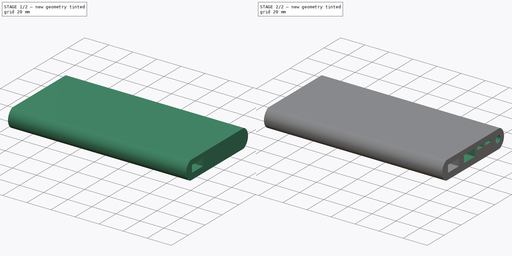
[diagram: build sequence overview — one tinted view per stage of 2, left to right]
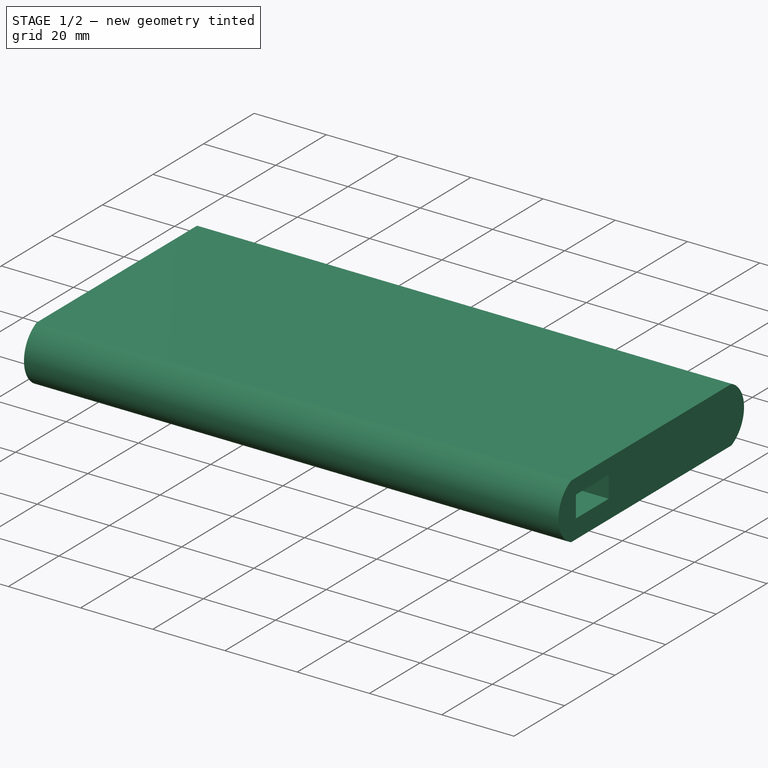
[diagram: stage 1 of 2 — iso view after this stage's code; geometry added in this stage tinted green]
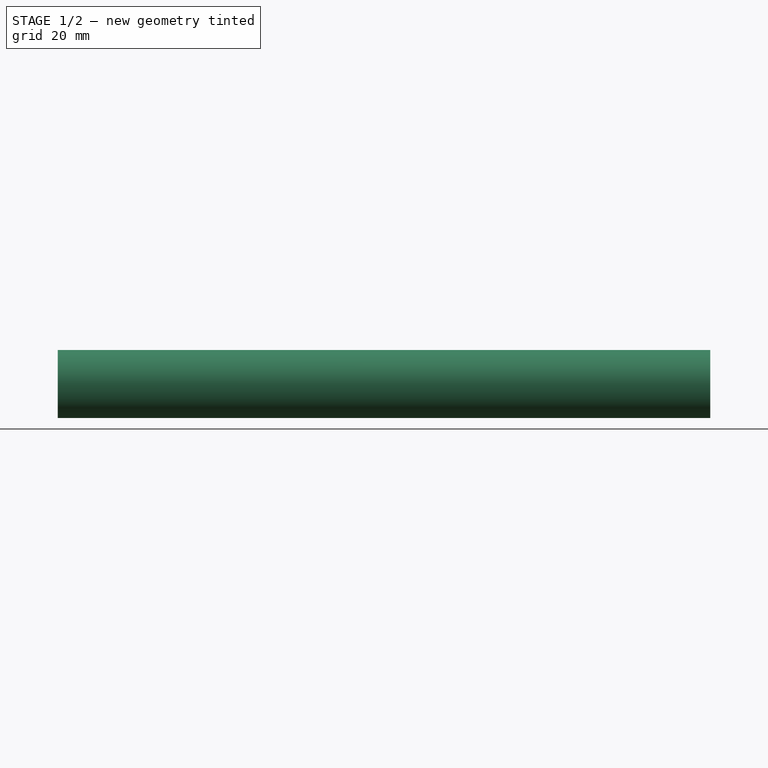
[diagram: stage 1 of 2 — front view after this stage's code; geometry added in this stage tinted green]
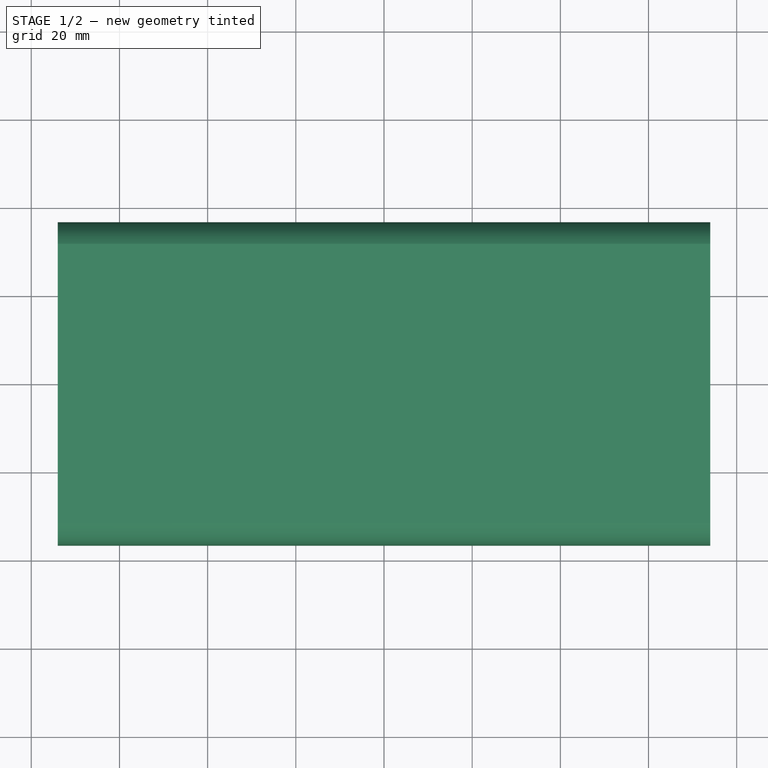
[diagram: stage 1 of 2 — top view after this stage's code; geometry added in this stage tinted green]
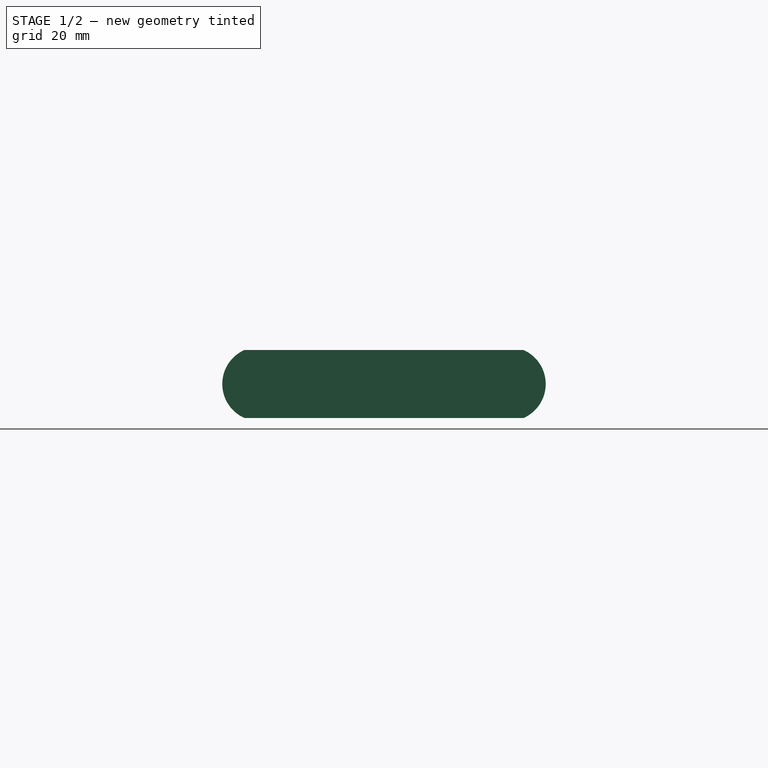
[diagram: stage 1 of 2 — right view after this stage's code; geometry added in this stage tinted green]
FCSTD DOCUMENT  (FreeCAD 0.20R29410 (Git))
Label: Mi_18w_PowerBank3
License: All rights reserved
LicenseURL: http://en.wikipedia.org/wiki/All_rights_reserved
objects: Sketcher::SketchObject×4, PartDesign::Pocket×2, PartDesign::Pad×1, PartDesign::Plane×1, PartDesign::LinearPattern×1, PartDesign::Body×1
note: 13 computed .brp shape members not serialized (recipe doc carries the construction recipe); baked Part::Feature solids carry a one-line shape summary decoded from their .brp

FEATURE [Sketcher::SketchObject] Sketch
  FullyConstrained = true
  MapMode = 5
  Placement = pos=(0,0,0) rot=(0.57735,0.57735,0.57735;2.0944rad)
  Support = -> [YZ_Plane]
  sketch-geometry (8):
    g0: LineSegment StartX=-36.68 StartY=7.7 StartZ=0 EndX=36.68 EndY=7.7 EndZ=0
    g1: LineSegment StartX=36.68 StartY=7.7 StartZ=0 EndX=36.68 EndY=-7.7 EndZ=0
    g2: LineSegment StartX=36.68 StartY=-7.7 StartZ=0 EndX=-36.68 EndY=-7.7 EndZ=0
    g3: LineSegment StartX=-36.68 StartY=-7.7 StartZ=0 EndX=-36.68 EndY=7.7 EndZ=0
    g4: ArcOfCircle CenterX=-28.251 CenterY=8e-16 CenterZ=0 NormalX=0 NormalY=0 NormalZ=1 AngleXU=0 Radius=8.429 StartAngle=1.98976 EndAngle=4.29343
    g5: ArcOfCircle CenterX=28.251 CenterY=-1e-15 CenterZ=0 NormalX=0 NormalY=0 NormalZ=1 AngleXU=0 Radius=8.429 StartAngle=5.13135 EndAngle=7.43502
    g6: LineSegment StartX=-31.68 StartY=7.7 StartZ=0 EndX=31.68 EndY=7.7 EndZ=0
    g7: LineSegment StartX=-31.68 StartY=-7.7 StartZ=0 EndX=31.68 EndY=-7.7 EndZ=0
  constraints (25):
    c: Coincident(g0,g1)
    c: Coincident(g1,g2)
    c: Coincident(g2,g3)
    c: Coincident(g3,g0)
    c: Horizontal(g0)
    c: Horizontal(g2)
    c: Vertical(g1)
    c: Vertical(g3)
    c: Symmetric(g1,g0,g-1)
    c: DistanceY(g1,g1) = 15.4
    c: DistanceX(g0,g0) = 73.36
    c: PointOnObject(g4,g0)
    c: PointOnObject(g4,g2)
    c: Tangent(g4,g3)
    c: PointOnObject(g5,g0)
    c: PointOnObject(g5,g2)
    c: Tangent(g5,g1)
    c: Vertical(g5,g5)
    c: DistanceX(g5,g0) = 5
    c: Vertical(g4,g4)
    c: DistanceX(g0,g4) = 5
    c: Coincident(g4,g6)
    c: Coincident(g6,g5)
    c: Coincident(g4,g7)
    c: Coincident(g7,g5)
FEATURE [PartDesign::Pad] Pad
  Direction = (1,-2e-16,3e-16)
  Length = 148
  Length2 = 10
  Midplane = true
  Placement = pos=(0,0,0) rot=(0.57735,0.57735,0.57735;2.0944rad)
  Profile = -> Sketch
  ReferenceAxis = -> Sketch [N_Axis]
  Type = 0
FEATURE [PartDesign::Plane] DatumPlane
  AttachmentOffset = pos=(0,0,74) rot=(0,0,1;0rad)
  Length = 85.4728
  MapMode = 5
  Placement = pos=(74,-1.64e-14,1.64e-14) rot=(0.57735,0.57735,0.57735;2.0944rad)
  ResizeMode = 0
  Support = -> [YZ_Plane]
  Width = 62.1128
FEATURE [Sketcher::SketchObject] Sketch001
  FullyConstrained = false
  MapMode = 5
  Placement = pos=(74,-1.64e-14,1.64e-14) rot=(0.57735,0.57735,0.57735;2.0944rad)
  Support = -> [DatumPlane]
  sketch-geometry (4):
    g0: LineSegment StartX=-29.832 StartY=3.5083 StartZ=0 EndX=-16.832 EndY=3.5083 EndZ=0
    g1: LineSegment StartX=-16.832 StartY=3.5083 StartZ=0 EndX=-16.832 EndY=-2.4917 EndZ=0
    g2: LineSegment StartX=-16.832 StartY=-2.4917 StartZ=0 EndX=-29.832 EndY=-2.4917 EndZ=0
    g3: LineSegment StartX=-29.832 StartY=-2.4917 StartZ=0 EndX=-29.832 EndY=3.5083 EndZ=0
  constraints (10):
    c: Coincident(g0,g1)
    c: Coincident(g1,g2)
    c: Coincident(g2,g3)
    c: Coincident(g3,g0)
    c: Horizontal(g0)
    c: Horizontal(g2)
    c: Vertical(g1)
    c: Vertical(g3)
    c: DistanceX(g0,g0) = 13
    c: DistanceY(g1,g1) = 6
FEATURE [PartDesign::Pocket] Pocket
  BaseFeature = -> Pad
  Direction = (-1,1e-16,-1e-16)
  Length = 8
  Length2 = 5
  Placement = pos=(0,0,0) rot=(0.57735,0.57735,0.57735;2.0944rad)
  Profile = -> Sketch001
  ReferenceAxis = -> Sketch001 [N_Axis]
  Type = 0
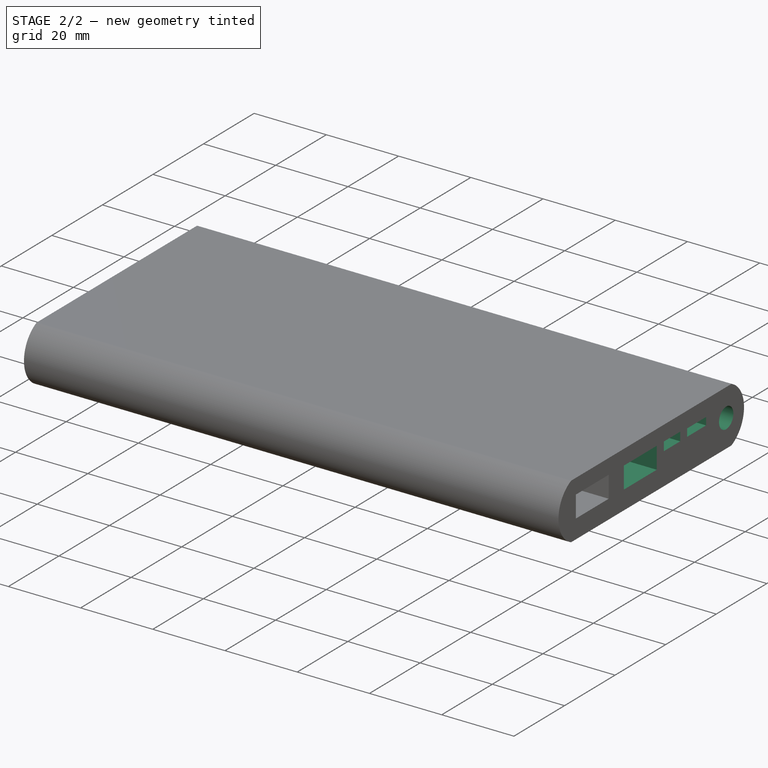
[diagram: stage 2 of 2 — iso view after this stage's code; geometry added in this stage tinted green]
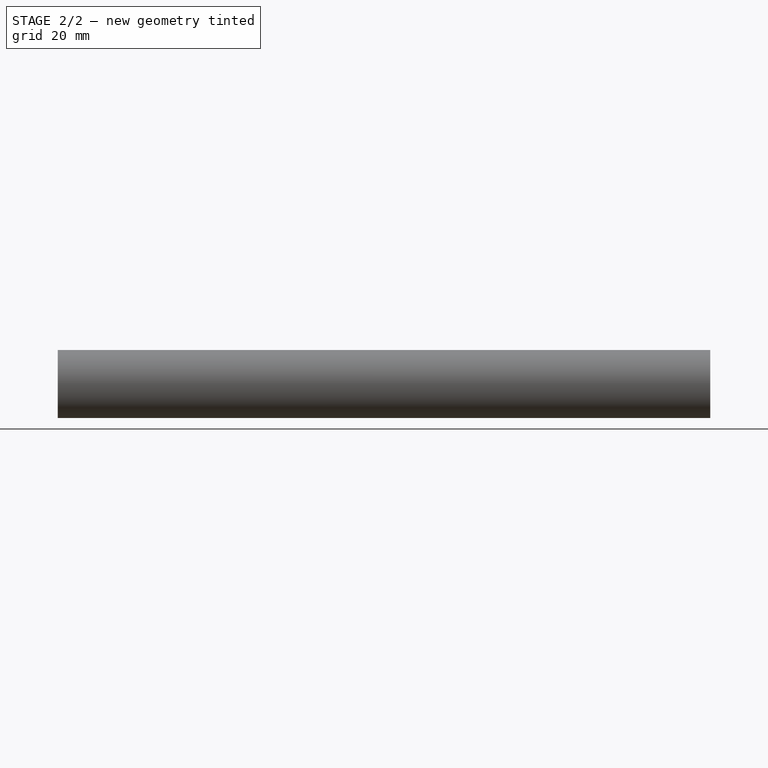
[diagram: stage 2 of 2 — front view after this stage's code; geometry added in this stage tinted green]
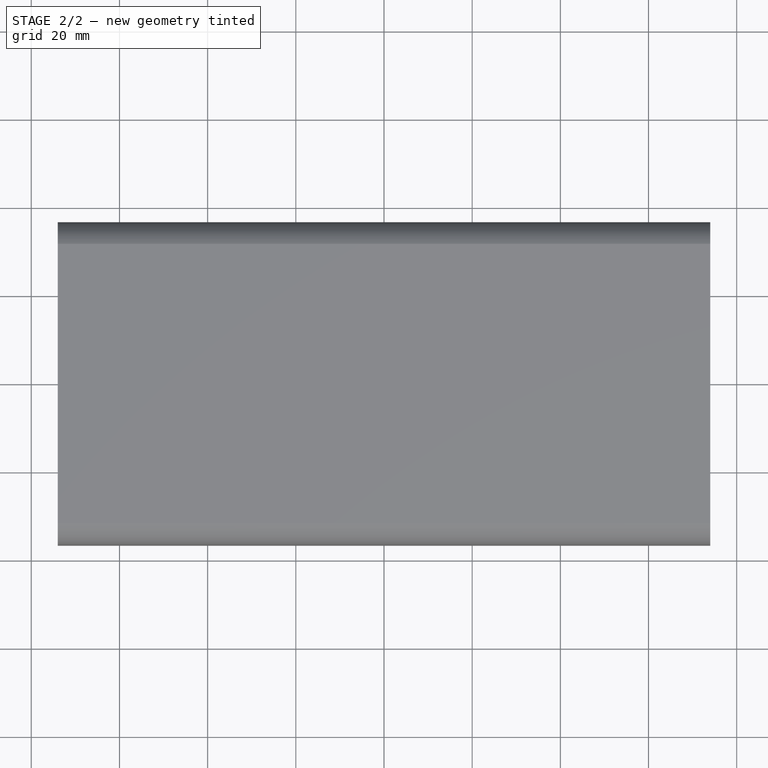
[diagram: stage 2 of 2 — top view after this stage's code; geometry added in this stage tinted green]
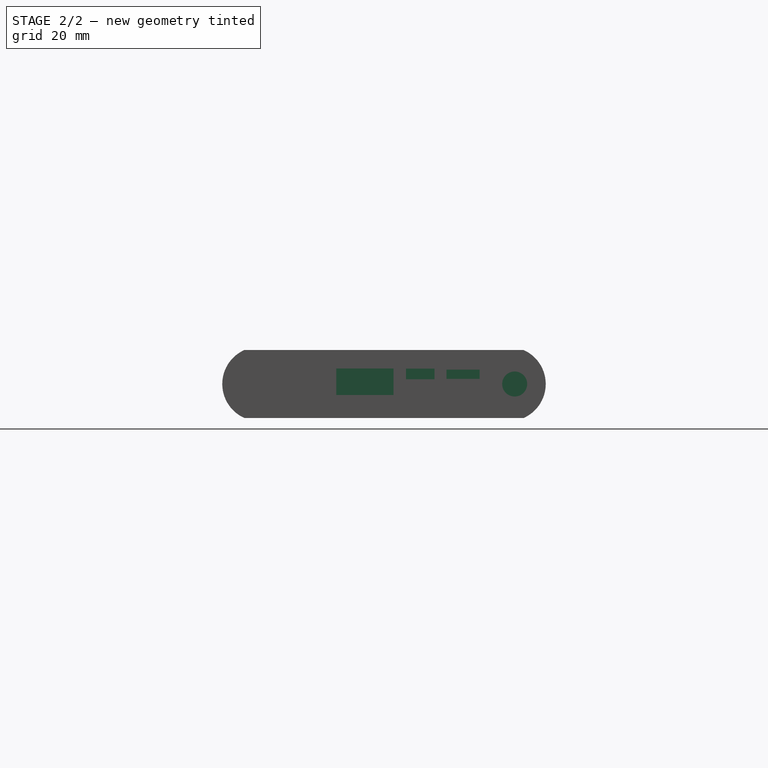
[diagram: stage 2 of 2 — right view after this stage's code; geometry added in this stage tinted green]
FEATURE [PartDesign::LinearPattern] LinearPattern
  BaseFeature = -> Pocket
  Direction = -> Sketch001 [H_Axis]
  Length = 19
  Occurrences = 2
  Originals = -> [Pocket]
  Placement = pos=(0,0,0) rot=(0.57735,0.57735,0.57735;2.0944rad)
FEATURE [Sketcher::SketchObject] Sketch002
  FullyConstrained = false
  MapMode = 5
  Placement = pos=(74,-1.64e-14,1.64e-14) rot=(0.57735,0.57735,0.57735;2.0944rad)
  Support = -> [DatumPlane]
  sketch-geometry (9):
    g0: LineSegment StartX=4.97809 StartY=3.49779 StartZ=0 EndX=11.455 EndY=3.49779 EndZ=0
    g1: LineSegment StartX=11.455 StartY=3.49779 StartZ=0 EndX=11.455 EndY=1.07871 EndZ=0
    g2: LineSegment StartX=11.455 StartY=1.07871 StartZ=0 EndX=4.97809 EndY=1.07871 EndZ=0
    g3: LineSegment StartX=4.97809 StartY=1.07871 StartZ=0 EndX=4.97809 EndY=3.49779 EndZ=0
    g4: LineSegment StartX=14.1862 StartY=3.26369 StartZ=0 EndX=21.6776 EndY=3.26369 EndZ=0
    g5: LineSegment StartX=21.6776 StartY=3.26369 StartZ=0 EndX=21.6776 EndY=1.15674 EndZ=0
    g6: LineSegment StartX=21.6776 StartY=1.15674 StartZ=0 EndX=14.1862 EndY=1.15674 EndZ=0
    g7: LineSegment StartX=14.1862 StartY=1.15674 StartZ=0 EndX=14.1862 EndY=3.26369 EndZ=0
    g8: Circle CenterX=29.6371 CenterY=0 CenterZ=0 NormalX=0 NormalY=0 NormalZ=1 AngleXU=0 Radius=2.83622
  constraints (17):
    c: Coincident(g0,g1)
    c: Coincident(g1,g2)
    c: Coincident(g2,g3)
    c: Coincident(g3,g0)
    c: Horizontal(g0)
    c: Horizontal(g2)
    c: Vertical(g1)
    c: Vertical(g3)
    c: Coincident(g4,g5)
    c: Coincident(g5,g6)
    c: Coincident(g6,g7)
    c: Coincident(g7,g4)
    c: Horizontal(g4)
    c: Horizontal(g6)
    c: Vertical(g5)
    c: Vertical(g7)
    c: PointOnObject(g8,g-1)
FEATURE [PartDesign::Pocket] Pocket001
  BaseFeature = -> LinearPattern
  Direction = (-1,1e-16,-1e-16)
  Length = 5
  Length2 = 5
  Placement = pos=(0,0,0) rot=(0.57735,0.57735,0.57735;2.0944rad)
  Profile = -> Sketch002
  ReferenceAxis = -> Sketch002 [N_Axis]
  Type = 0
FEATURE [Sketcher::SketchObject] Sketch003
  ExternalGeometry = -> [Pocket001]
  FullyConstrained = true
  MapMode = 5
  Placement = pos=(0,0,0) rot=(0.57735,0.57735,0.57735;2.0944rad)
  Support = -> [YZ_Plane]
  sketch-geometry (4):
    g0: ArcOfCircle CenterX=-28.251 CenterY=-6e-15 CenterZ=0 NormalX=0 NormalY=0 NormalZ=1 AngleXU=0 Radius=8.429 StartAngle=1.5708 EndAngle=4.71239
    g1: ArcOfCircle CenterX=28.251 CenterY=4.8e-15 CenterZ=0 NormalX=0 NormalY=0 NormalZ=1 AngleXU=0 Radius=8.429 StartAngle=4.71239 EndAngle=7.85398
    g2: LineSegment StartX=-28.251 StartY=-8.429 StartZ=0 EndX=28.251 EndY=-8.429 EndZ=0
    g3: LineSegment StartX=28.251 StartY=8.429 StartZ=0 EndX=-28.251 EndY=8.429 EndZ=0
  constraints (10):
    c: Tangent(g0,g2) = -1.5708
    c: Tangent(g2,g1) = -1.5708
    c: Tangent(g1,g3) = -1.5708
    c: Tangent(g3,g0) = -1.5708
    c: Equal(g0,g1)
    c: Coincident(g0,g-3)
    c: Coincident(g1,g-4)
    c: Equal(g1,g-4)
    c: Distance(g0,g1) = 56.502
    c: Diameter(g0) = 16.858
FEATURE [PartDesign::Body] Body
  Group = -> [Sketch,Pad,DatumPlane,Sketch001,Pocket,LinearPattern,Sketch002,Pocket001,Sketch003]
  Origin = -> Origin
  Tip = -> Pocket001
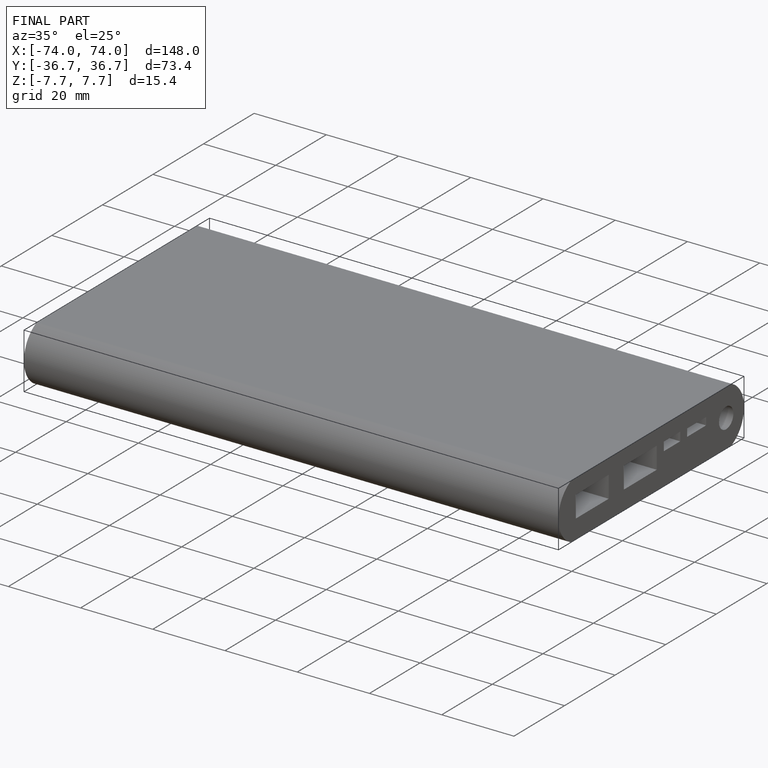
[diagram: finished part — iso view with bounding-box wireframe]
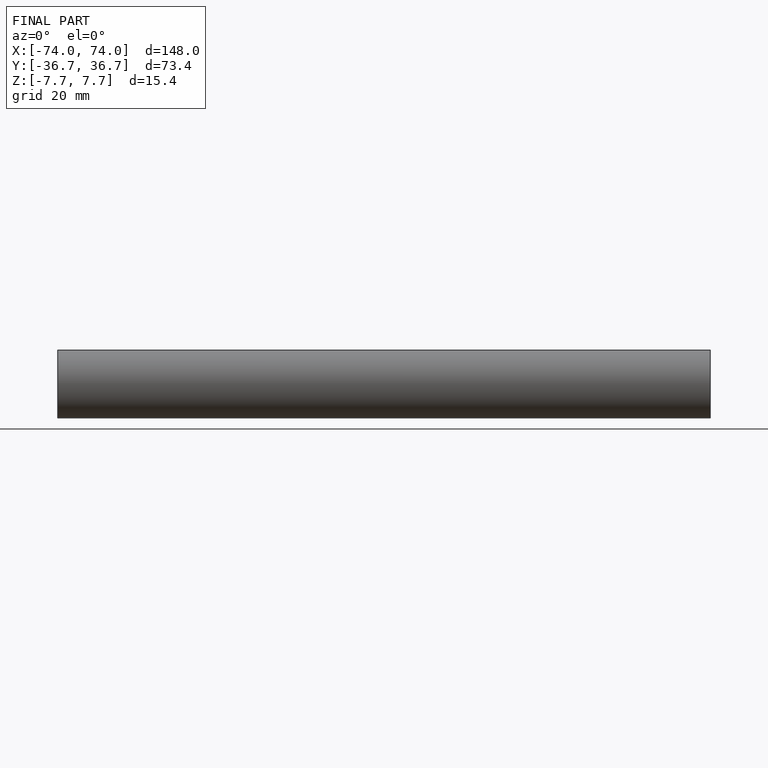
[diagram: finished part — front view with bounding-box wireframe]
